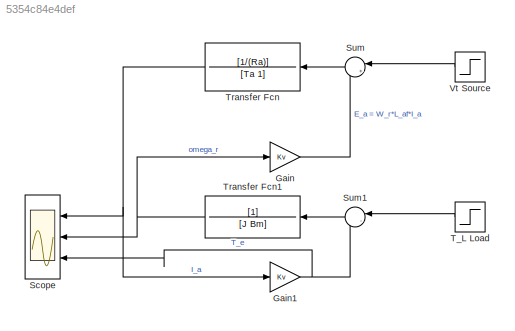
MODEL slx_5354c84e4def
KIND model
CONFIG AbsTol = auto
CONFIG EnableMultiTasking = off
CONFIG FixedStep = auto
CONFIG MaxStep = auto
CONFIG MinStep = auto
CONFIG RelTol = 1e-3
CONFIG SampleTimeConstraint = Unconstrained
CONFIG Solver = VariableStepAuto
CONFIG SolverName = VariableStepAuto
CONFIG StartTime = 0.0
CONFIG StopTime = 1
BLOCK [Gain] Gain
  Gain = Kv
  OutDataTypeStr = Inherit: Inherit via internal rule
  ParamDataTypeStr = Inherit: Inherit via internal rule
  SaturateOnIntegerOverflow = off
BLOCK [Gain] Gain1
  Gain = Kv
  OutDataTypeStr = Inherit: Inherit via internal rule
  ParamDataTypeStr = Inherit: Inherit via internal rule
  SaturateOnIntegerOverflow = off
BLOCK [Scope] Scope
  Floating = off
  NumInputPorts = 3
  Ports = [3]
  ScopeSpecificationString = Simulink.scopes.TimeScopeBlockCfg('CurrentConfiguration', extmgr.ConfigurationSet(extmgr.Configuration('Core','General UI',true),extmgr.Configuration('Core','Source UI',true),extmgr.Configuration('Sources','WiredSimulink',true,'DataLoggingSaveFormat','StructureWithTime','DataLoggingDecimation','1','DataLoggingDecimateData',true,'DataLogging',true,'DataLoggingVariableName','ScopeDataPM'),extmgr.Con...<+3061ch>
BLOCK [Sum] Sum
  IconShape = round
  InputSameDT = off
  Inputs = |+-
  OutDataTypeStr = Inherit: Inherit via internal rule
  Ports = [2, 1]
  SaturateOnIntegerOverflow = off
BLOCK [Sum] Sum1
  IconShape = round
  InputSameDT = off
  Inputs = |-+
  OutDataTypeStr = Inherit: Inherit via internal rule
  Ports = [2, 1]
  SaturateOnIntegerOverflow = off
BLOCK [Step] T_L Load
  After = Tm*0.25
  SampleTime = 0
  Time = T_time
BLOCK [TransferFcn] Transfer Fcn
  Denominator = [Ta 1]
  Numerator = [1/(Ra)]
BLOCK [TransferFcn] Transfer Fcn1
  Denominator = [J Bm]
BLOCK [Step] Vt Source
  After = Va
  Before = Va
  SampleTime = 0
  Time = 0
NET Gain1:1 -> Scope:3, Sum1:2
LINE Gain:1 -> Sum:2
LINE Sum1:1 -> Transfer Fcn1:1
LINE Sum:1 -> Transfer Fcn:1
LINE T_L Load:1 -> Sum1:1
NET Transfer Fcn1:1 -> Gain:1, Scope:2
NET Transfer Fcn:1 -> Gain1:1, Scope:1
LINE Vt Source:1 -> Sum:1
note: NET lines group one-source signal fan-out (src -> all destinations, sorted); 1:1 wires keep LINE
